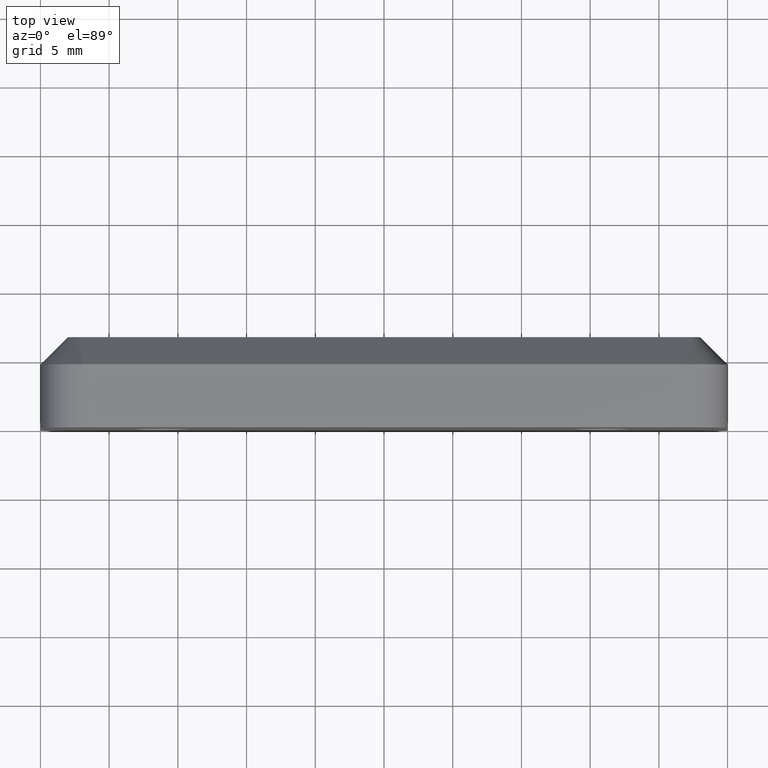
[diagram: clean part render]
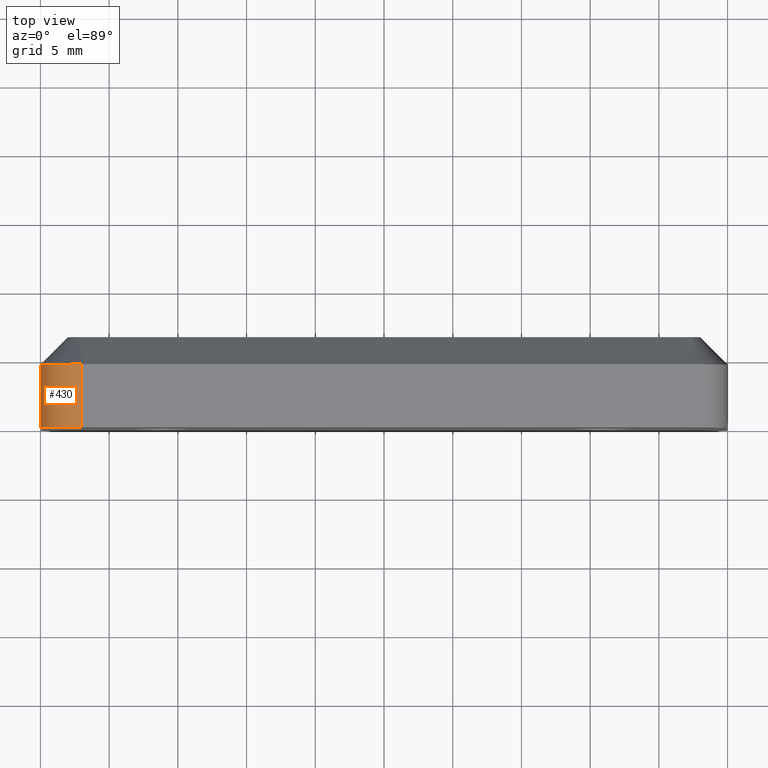
[diagram: same view with one face highlighted and labeled with its STEP entity id]
A machine part, top view. The second image highlights one B-rep face of the part: STEP entity #430.
In plain terms, the highlighted cylindrical surface (partial cylindrical patch) has radius 3 mm, axis along (0, -1, 0).
Its self-contained STEP definition (entity closure, byte-faithful):
#44=CYLINDRICAL_SURFACE('',#479,3.);
#74=FACE_OUTER_BOUND('',#110,.T.);
#110=EDGE_LOOP('',(#352,#353,#354,#355));
#134=CIRCLE('',#452,3.);
#150=CIRCLE('',#480,3.);
#164=LINE('',#707,#192);
#169=LINE('',#716,#197);
#192=VECTOR('',#562,4.59999999999999);
#197=VECTOR('',#569,4.59999999999999);
#217=VERTEX_POINT('',#661);
#218=VERTEX_POINT('',#663);
#236=VERTEX_POINT('',#706);
#239=VERTEX_POINT('',#714);
#253=EDGE_CURVE('',#217,#218,#134,.T.);
#272=EDGE_CURVE('',#218,#236,#164,.T.);
#277=EDGE_CURVE('',#239,#217,#169,.T.);
#286=EDGE_CURVE('',#239,#236,#150,.T.);
#352=ORIENTED_EDGE('',*,*,#277,.F.);
#353=ORIENTED_EDGE('',*,*,#286,.T.);
#354=ORIENTED_EDGE('',*,*,#272,.F.);
#355=ORIENTED_EDGE('',*,*,#253,.F.);
#430=ADVANCED_FACE('',(#74),#44,.T.);
#452=AXIS2_PLACEMENT_3D('',#664,#517,#518);
#479=AXIS2_PLACEMENT_3D('',#733,#588,#589);
#480=AXIS2_PLACEMENT_3D('',#734,#590,#591);
#517=DIRECTION('center_axis',(0.,-1.,0.));
#518=DIRECTION('ref_axis',(-1.15648231731787E-15,0.,1.));
#562=DIRECTION('',(0.,1.,0.));
#569=DIRECTION('',(0.,-1.,0.));
#588=DIRECTION('center_axis',(0.,-1.,0.));
#589=DIRECTION('ref_axis',(0.,0.,-1.));
#590=DIRECTION('center_axis',(0.,-1.,0.));
#591=DIRECTION('ref_axis',(-1.15648231731787E-15,0.,1.));
#661=CARTESIAN_POINT('',(22.,0.,-8.5));
#663=CARTESIAN_POINT('',(25.,0.,-5.5));
#664=CARTESIAN_POINT('Origin',(22.,0.,-5.5));
#706=CARTESIAN_POINT('',(25.,4.59999999999999,-5.5));
#707=CARTESIAN_POINT('',(25.,6.6,-5.5));
#714=CARTESIAN_POINT('',(22.,4.59999999999999,-8.5));
#716=CARTESIAN_POINT('',(22.,6.6,-8.5));
#733=CARTESIAN_POINT('Origin',(22.,6.6,-5.5));
#734=CARTESIAN_POINT('Origin',(22.,4.59999999999999,-5.5));